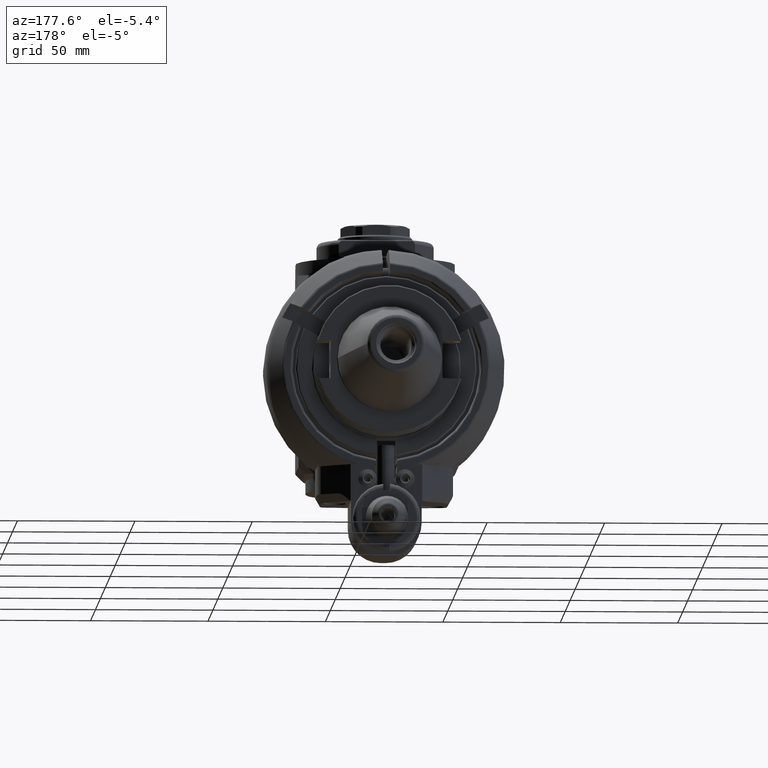
[diagram: clean part render]
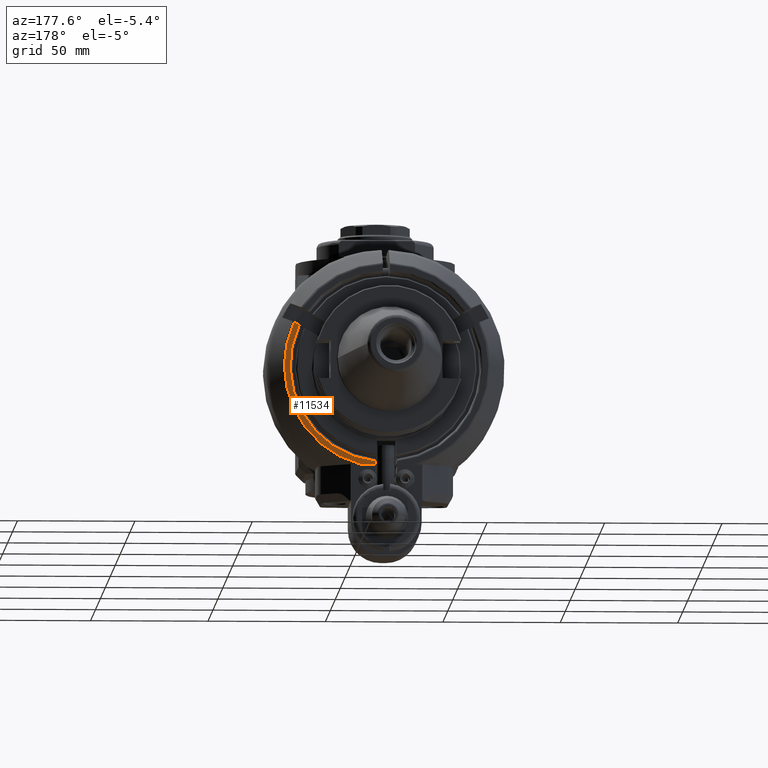
[diagram: same view with one face highlighted and labeled with its STEP entity id]
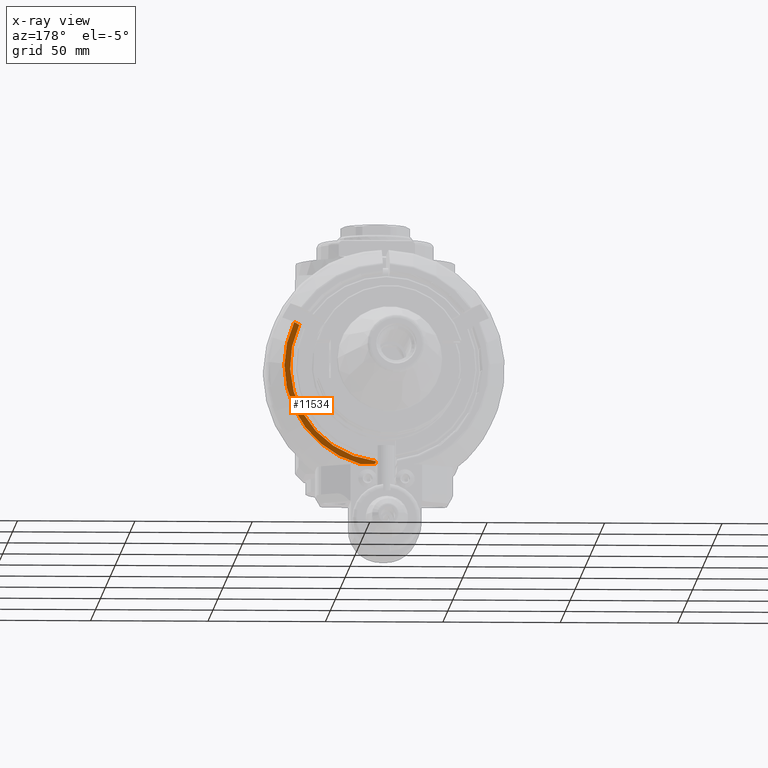
[diagram: x-ray of the same camera — body ghosted, the highlighted face saturated]
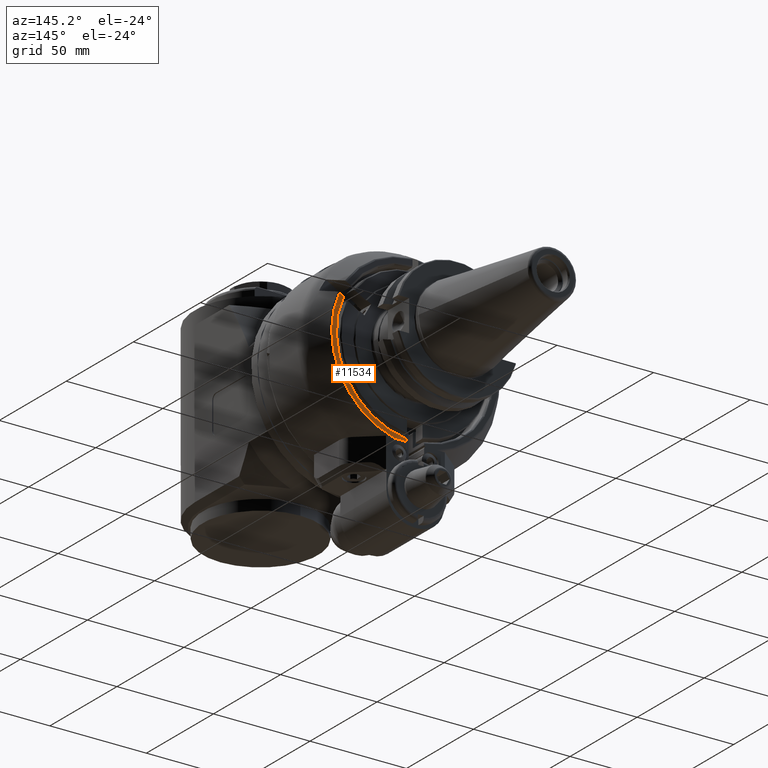
[diagram: same view with one face highlighted and labeled with its STEP entity id]
A machine part, auxiliary view. The second image highlights one B-rep face of the part: STEP entity #11534.
The next image is the same camera in x-ray: the body ghosted, the highlighted face saturated — about 0% of this face is hidden behind the body in this view.
A second angle (auxiliary view) of the same face is appended — the face is thin or edge-on in the first view.
In plain terms, the highlighted planar face has unit normal (-0, 1, -0).
Its self-contained STEP definition (entity closure, byte-faithful):
#674=LINE('',#18134,#1448);
#683=LINE('',#18227,#1457);
#684=LINE('',#18229,#1458);
#1448=VECTOR('',#14239,5.52390627884);
#1457=VECTOR('',#14278,2.43090617210213);
#1458=VECTOR('',#14281,0.247699451442);
#2562=FACE_OUTER_BOUND('',#3322,.T.);
#3322=EDGE_LOOP('',(#8170,#8171,#8172,#8173,#8174,#8175));
#4162=CIRCLE('',#12458,1.);
#4163=CIRCLE('',#12460,41.);
#4164=CIRCLE('',#12461,43.42264973081);
#4934=VERTEX_POINT('',#18131);
#4935=VERTEX_POINT('',#18133);
#4955=VERTEX_POINT('',#18219);
#4956=VERTEX_POINT('',#18223);
#4957=VERTEX_POINT('',#18224);
#4958=VERTEX_POINT('',#18226);
#6164=EDGE_CURVE('',#4935,#4934,#674,.T.);
#6188=EDGE_CURVE('',#4934,#4955,#4162,.T.);
#6189=EDGE_CURVE('',#4956,#4957,#4163,.T.);
#6190=EDGE_CURVE('',#4957,#4958,#683,.T.);
#6191=EDGE_CURVE('',#4958,#4935,#4164,.T.);
#6192=EDGE_CURVE('',#4956,#4955,#684,.T.);
#8170=ORIENTED_EDGE('',*,*,#6189,.T.);
#8171=ORIENTED_EDGE('',*,*,#6190,.T.);
#8172=ORIENTED_EDGE('',*,*,#6191,.T.);
#8173=ORIENTED_EDGE('',*,*,#6164,.T.);
#8174=ORIENTED_EDGE('',*,*,#6188,.T.);
#8175=ORIENTED_EDGE('',*,*,#6192,.F.);
#11160=PLANE('',#12459);
#11534=ADVANCED_FACE('',(#2562),#11160,.T.);
#12458=AXIS2_PLACEMENT_3D('',#18221,#14272,#14273);
#12459=AXIS2_PLACEMENT_3D('',#18222,#14274,#14275);
#12460=AXIS2_PLACEMENT_3D('',#18225,#14276,#14277);
#12461=AXIS2_PLACEMENT_3D('',#18228,#14279,#14280);
#14239=DIRECTION('',(-1.,0.,0.));
#14272=DIRECTION('center_axis',(0.,1.,0.));
#14273=DIRECTION('ref_axis',(0.,0.,-1.));
#14274=DIRECTION('center_axis',(0.,1.,0.));
#14275=DIRECTION('ref_axis',(0.,0.,1.));
#14276=DIRECTION('center_axis',(0.,-1.,0.));
#14277=DIRECTION('ref_axis',(0.109756097561003,0.,-0.993958549964826));
#14278=DIRECTION('',(0.866025403777353,0.,0.500000000012273));
#14279=DIRECTION('center_axis',(0.,1.,0.));
#14280=DIRECTION('ref_axis',(0.90350914504947,0.,0.428568809891686));
#14281=DIRECTION('',(-3.585710079411E-14,0.,-1.));
#18131=CARTESIAN_POINT('',(5.5,39.5,-42.));
#18133=CARTESIAN_POINT('',(11.02390627884,39.5,-42.));
#18134=CARTESIAN_POINT('',(11.02390627884,39.5,-42.));
#18219=CARTESIAN_POINT('',(4.5,39.5,-41.));
#18221=CARTESIAN_POINT('Origin',(5.5,39.5,-41.));
#18222=CARTESIAN_POINT('Origin',(0.,39.5,40.75));
#18223=CARTESIAN_POINT('',(4.5,39.5,-40.75230054856));
#18224=CARTESIAN_POINT('',(37.12742924521,39.5,17.39407938471));
#18225=CARTESIAN_POINT('Origin',(0.,39.5,0.));
#18226=CARTESIAN_POINT('',(39.23276113407,39.5,18.60959331748));
#18227=CARTESIAN_POINT('',(37.12742924521,39.5,17.39407938471));
#18228=CARTESIAN_POINT('Origin',(0.,39.5,0.));
#18229=CARTESIAN_POINT('',(4.5,39.5,-40.75230054856));